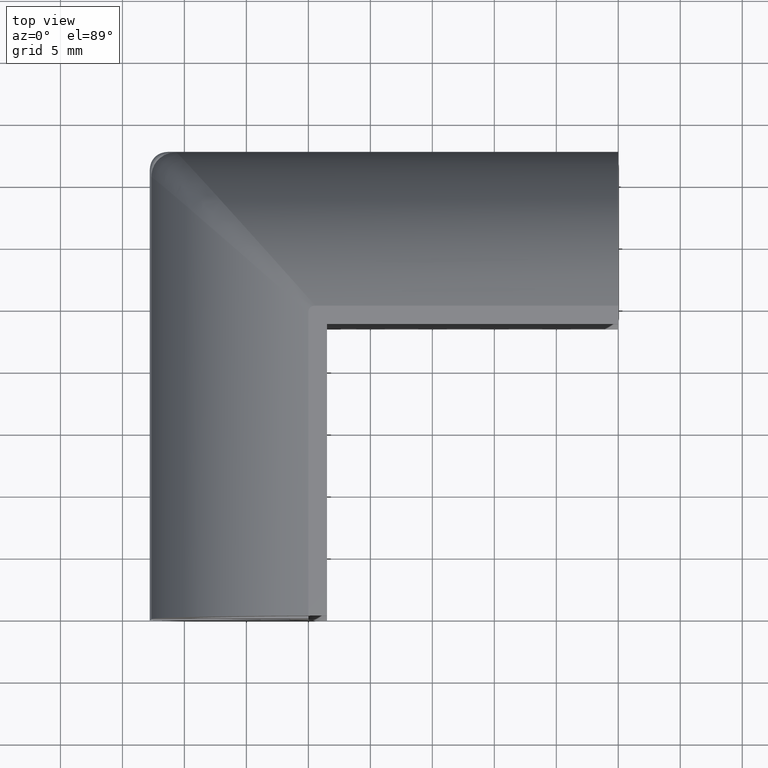
[diagram: clean part render]
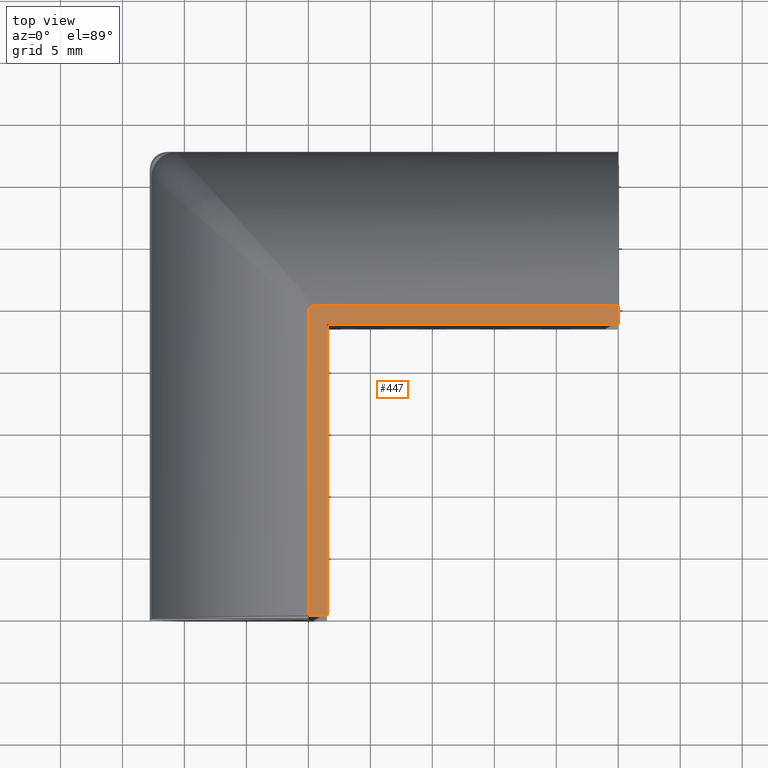
[diagram: same view with one face highlighted and labeled with its STEP entity id]
A machine part, top view. The second image highlights one B-rep face of the part: STEP entity #447.
In plain terms, the highlighted planar face has unit normal (0, 0, -1).
Its self-contained STEP definition (entity closure, byte-faithful):
#80=CARTESIAN_POINT('',(25.000000000000682,23.499999999999204,13.279091526508303));
#81=VERTEX_POINT('',#80);
#88=CARTESIAN_POINT('',(1.500000000000227,23.499999999999204,13.279091526508303));
#89=VERTEX_POINT('',#88);
#90=CARTESIAN_POINT('',(1.500000000000249,23.499999999999208,13.279091526508303));
#91=DIRECTION('',(1.0,0.0,0.0));
#92=VECTOR('',#91,23.500000000000433);
#93=LINE('',#90,#92);
#94=EDGE_CURVE('',#89,#81,#93,.T.);
#272=CARTESIAN_POINT('',(1.500000000000227,0.0,13.279091526508523));
#273=VERTEX_POINT('',#272);
#274=CARTESIAN_POINT('',(1.500000000000227,0.0,13.279091526508523));
#275=DIRECTION('',(0.0,1.0,0.0));
#276=VECTOR('',#275,23.499999999999144);
#277=LINE('',#274,#276);
#278=EDGE_CURVE('',#273,#89,#277,.T.);
#396=CARTESIAN_POINT('',(25.001000000110935,-0.001000000110139,13.279091526508303));
#397=DIRECTION('',(0.0,0.0,-1.0));
#398=DIRECTION('',(-1.0,0.0,0.0));
#399=AXIS2_PLACEMENT_3D('',#396,#397,#398);
#400=PLANE('',#399);
#401=ORIENTED_EDGE('',*,*,#94,.T.);
#402=CARTESIAN_POINT('',(25.000000000000682,24.999999999999659,13.279091526508310));
#403=VERTEX_POINT('',#402);
#404=CARTESIAN_POINT('',(25.000000000000682,23.499999999999204,13.279091526508303));
#405=DIRECTION('',(0.0,1.0,0.0));
#406=VECTOR('',#405,1.500000000000000);
#407=LINE('',#404,#406);
#408=EDGE_CURVE('',#81,#403,#407,.T.);
#409=ORIENTED_EDGE('',*,*,#408,.T.);
#410=CARTESIAN_POINT('',(0.564971751412372,24.999999999998863,13.279091526508559));
#411=VERTEX_POINT('',#410);
#412=CARTESIAN_POINT('',(0.564971751412372,24.999999999999662,13.279091526508310));
#413=DIRECTION('',(1.0,0.0,0.0));
#414=VECTOR('',#413,24.435028248588310);
#415=LINE('',#412,#414);
#416=EDGE_CURVE('',#411,#403,#415,.T.);
#417=ORIENTED_EDGE('',*,*,#416,.F.);
#418=CARTESIAN_POINT('',(-1.136868E-013,24.435028248586491,13.279091526508530));
#419=VERTEX_POINT('',#418);
#420=CARTESIAN_POINT('',(0.564971751411576,24.999999999999659,13.279091526508303));
#421=CARTESIAN_POINT('',(0.480808786435318,24.999999999999659,13.279091526508303));
#422=CARTESIAN_POINT('',(0.346866351524909,24.984152537374598,13.279091526508303));
#423=CARTESIAN_POINT('',(0.163206655248246,24.890137166305522,13.279091526508303));
#424=CARTESIAN_POINT('',(0.023813131956103,24.711620583962599,13.279091526508303));
#425=CARTESIAN_POINT('',(-2.273737E-013,24.534891715491881,13.279091526508303));
#426=CARTESIAN_POINT('',(-2.273737E-013,24.435028248587173,13.279091526508303));
#427=B_SPLINE_CURVE_WITH_KNOTS('',3,(#420,#421,#422,#423,#424,#425,#426),.UNSPECIFIED.,.F.,.U.,(4,1,1,1,4),(0.0,0.253665090765582,0.396684530384670,0.610476051265193,0.912302647309955),.UNSPECIFIED.);
#428=EDGE_CURVE('',#411,#419,#427,.T.);
#429=ORIENTED_EDGE('',*,*,#428,.T.);
#430=CARTESIAN_POINT('',(-2.273737E-013,0.0,13.279091526508530));
#431=VERTEX_POINT('',#430);
#432=CARTESIAN_POINT('',(-2.273737E-013,0.0,13.279091526508530));
#433=DIRECTION('',(0.0,1.0,0.0));
#434=VECTOR('',#433,24.435028248586491);
#435=LINE('',#432,#434);
#436=EDGE_CURVE('',#431,#419,#435,.T.);
#437=ORIENTED_EDGE('',*,*,#436,.F.);
#438=CARTESIAN_POINT('',(1.500000000000227,0.0,13.279091526508523));
#439=DIRECTION('',(-1.0,0.0,0.0));
#440=VECTOR('',#439,1.500000000000000);
#441=LINE('',#438,#440);
#442=EDGE_CURVE('',#273,#431,#441,.T.);
#443=ORIENTED_EDGE('',*,*,#442,.F.);
#444=ORIENTED_EDGE('',*,*,#278,.T.);
#445=EDGE_LOOP('',(#401,#409,#417,#429,#437,#443,#444));
#446=FACE_OUTER_BOUND('',#445,.T.);
#447=ADVANCED_FACE('',(#446),#400,.F.);